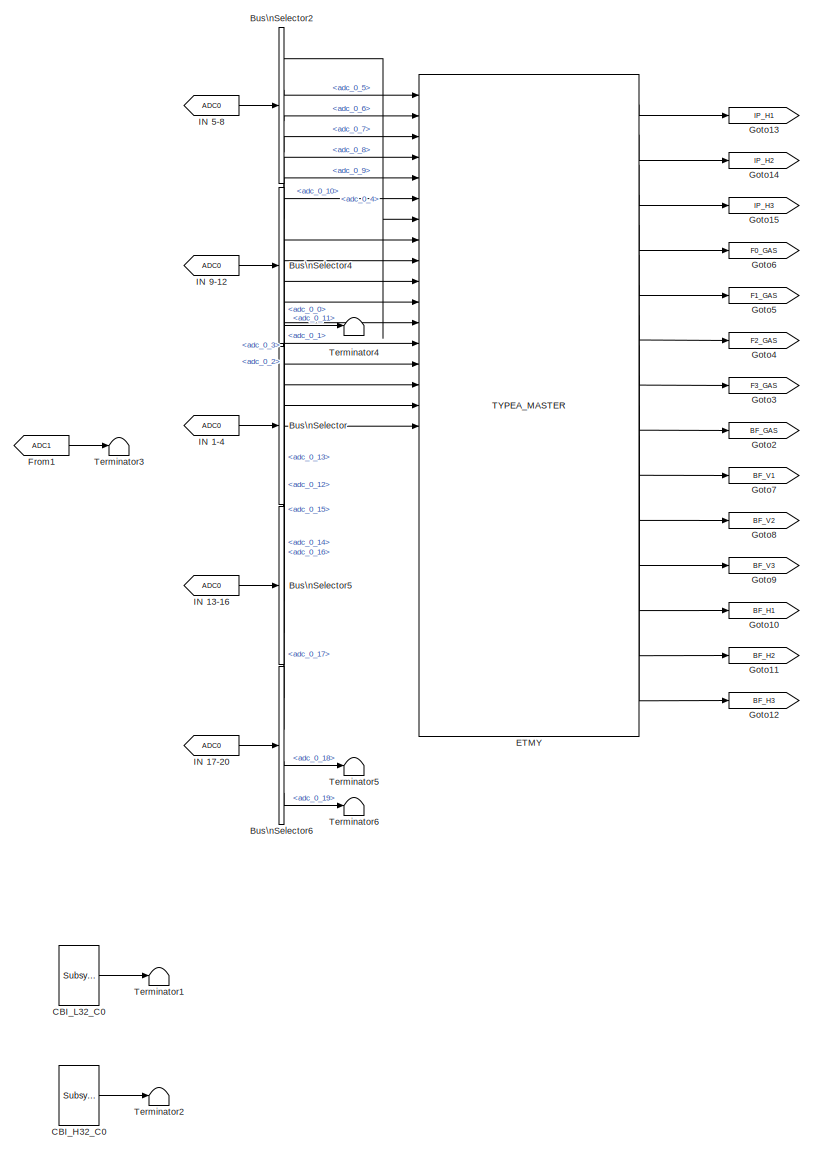
[diagram: root canvas - part 1/3, center side, full height]
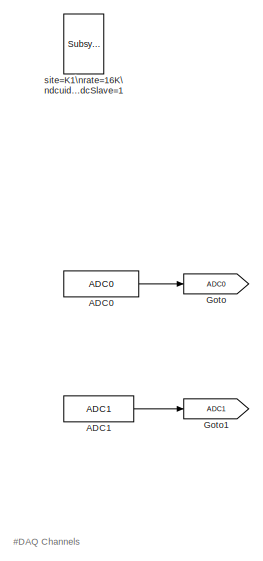
[diagram: root canvas - part 2/3, top left region]
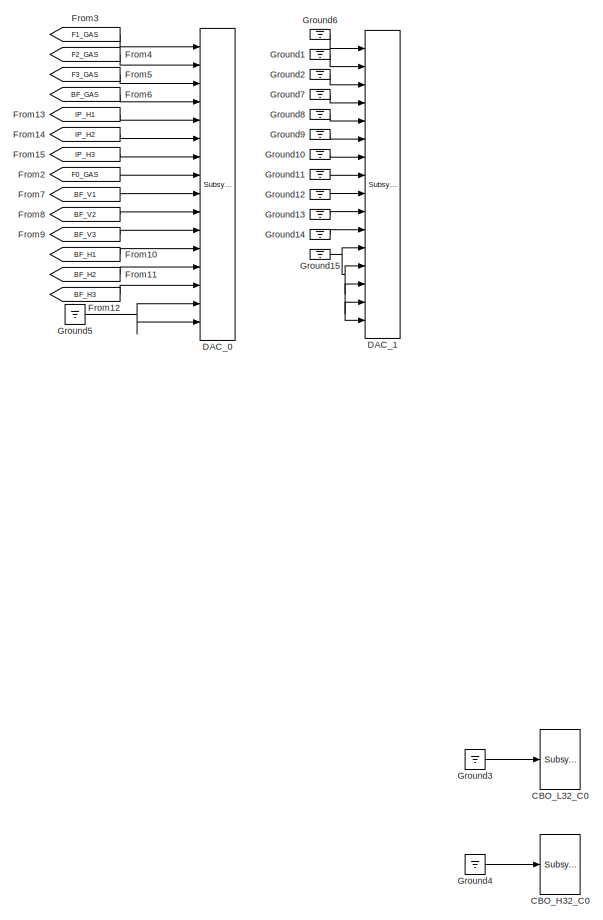
[diagram: root canvas - part 3/3, right side, full height]
MODEL k1visey
KIND model
BLOCK [Reference] ADC0  REF=cdsAdcx0/ADC0
  AttributesFormatString = %<Description>\\n%<Tag>
  Description = type-GSC_16AI64SSA\ncard_num=0
  Ports = [0, 1]
  SID = 51
  SourceBlock = cdsAdcx0/ADC0
  SourceType = SubSystem
  Tag = cdsAdc
BLOCK [Reference] ADC1  REF=cdsAdcx1/ADC1
  AttributesFormatString = %<Description>\\n%<Tag>
  Description = type-GSC_16AI64SSA\ncard_num=1
  Ports = [0, 1]
  SID = 111
  SourceBlock = cdsAdcx1/ADC1
  SourceType = SubSystem
  Tag = cdsAdc
BLOCK [BusSelector] Bus\nSelector
  OutputSignals = adc_0_0,adc_0_1,adc_0_2,adc_0_3
  Ports = [1, 4]
  SID = 157
BLOCK [BusSelector] Bus\nSelector2
  OutputSignals = adc_0_4,adc_0_5,adc_0_6,adc_0_7
  Ports = [1, 4]
  SID = 183
BLOCK [BusSelector] Bus\nSelector4
  OutputSignals = adc_0_8,adc_0_9,adc_0_10,adc_0_11
  Ports = [1, 4]
  SID = 187
BLOCK [BusSelector] Bus\nSelector5
  OutputSignals = adc_0_12,adc_0_13,adc_0_14,adc_0_15
  Ports = [1, 4]
  SID = 189
BLOCK [BusSelector] Bus\nSelector6
  OutputSignals = adc_0_16,adc_0_17,adc_0_18,adc_0_19
  Ports = [1, 4]
  SID = 191
BLOCK [Reference] CBI_H32_C0  REF=cdsCDI64/Subsystem
  AttributesFormatString = %<Tag>\\n%<Description>
  Description = card_num=1
  Ports = [0, 1]
  SID = 130
  SourceBlock = cdsCDI64/Subsystem
  SourceType = SubSystem
  Tag = cdsCDI64
BLOCK [Reference] CBI_L32_C0  REF=cdsCDI64/Subsystem
  AttributesFormatString = %<Tag>\\n%<Description>
  Description = card_num=0
  Ports = [0, 1]
  SID = 131
  SourceBlock = cdsCDI64/Subsystem
  SourceType = SubSystem
  Tag = cdsCDI64
BLOCK [Reference] CBO_H32_C0  REF=cdsCDO64/Subsystem
  AttributesFormatString = %<Tag>\\n%<Description>
  Description = card_num=1
  Ports = [1]
  SID = 132
  SourceBlock = cdsCDO64/Subsystem
  SourceType = SubSystem
  Tag = cdsCDO64
BLOCK [Reference] CBO_L32_C0  REF=cdsCDO64/Subsystem
  AttributesFormatString = %<Tag>\\n%<Description>
  Description = card_num=0
  Ports = [1]
  SID = 133
  SourceBlock = cdsCDO64/Subsystem
  SourceType = SubSystem
  Tag = cdsCDO64
BLOCK [Reference] DAC_0  REF=dac/Subsystem  (lib defined in slx_40ef132df75b, slx_b7657ccccc5b, +4 more)
  AttributesFormatString = %<Description>
  Description = type=GSC_16AO16,\ncard_num=0
  Ports = [16]
  SID = 5
  SourceBlock = dac/Subsystem
  SourceType = SubSystem
BLOCK [Reference] DAC_1  REF=dac/Subsystem  (lib defined in slx_40ef132df75b, slx_b7657ccccc5b, +4 more)
  AttributesFormatString = %<Description>
  Description = type=GSC_16AO16,\ncard_num=1
  Ports = [16]
  SID = 112
  SourceBlock = dac/Subsystem
  SourceType = SubSystem
BLOCK [Reference] ETMY  REF=TYPEA_MASTER/TYPEA_MASTER
  Ports = [31, 21]
  SID = 114
  SourceBlock = TYPEA_MASTER/TYPEA_MASTER
  SourceType = SubSystem
BLOCK [From] From1
  GotoTag = ADC1
  SID = 128
BLOCK [From] From10
  GotoTag = BF_H1
  SID = 215
BLOCK [From] From11
  GotoTag = BF_H2
  SID = 216
BLOCK [From] From12
  GotoTag = BF_H3
  SID = 217
BLOCK [From] From13
  GotoTag = IP_H1
  SID = 221
BLOCK [From] From14
  GotoTag = IP_H2
  SID = 222
BLOCK [From] From15
  GotoTag = IP_H3
  SID = 223
BLOCK [From] From2
  GotoTag = F0_GAS
  SID = 152
BLOCK [From] From3
  GotoTag = F1_GAS
  SID = 153
BLOCK [From] From4
  GotoTag = F2_GAS
  SID = 154
BLOCK [From] From5
  GotoTag = F3_GAS
  SID = 155
BLOCK [From] From6
  GotoTag = BF_GAS
  SID = 156
BLOCK [From] From7
  GotoTag = BF_V1
  SID = 212
BLOCK [From] From8
  GotoTag = BF_V2
  SID = 213
BLOCK [From] From9
  GotoTag = BF_V3
  SID = 214
BLOCK [Goto] Goto
  GotoTag = ADC0
  SID = 125
BLOCK [Goto] Goto1
  GotoTag = ADC1
  SID = 127
BLOCK [Goto] Goto10
  GotoTag = BF_H1
  SID = 209
BLOCK [Goto] Goto11
  GotoTag = BF_H2
  SID = 210
BLOCK [Goto] Goto12
  GotoTag = BF_H3
  SID = 211
BLOCK [Goto] Goto13
  GotoTag = IP_H1
  SID = 218
BLOCK [Goto] Goto14
  GotoTag = IP_H2
  SID = 219
BLOCK [Goto] Goto15
  GotoTag = IP_H3
  SID = 220
BLOCK [Goto] Goto2
  GotoTag = BF_GAS
  SID = 177
BLOCK [Goto] Goto3
  GotoTag = F3_GAS
  SID = 148
BLOCK [Goto] Goto4
  GotoTag = F2_GAS
  SID = 149
BLOCK [Goto] Goto5
  GotoTag = F1_GAS
  SID = 150
BLOCK [Goto] Goto6
  GotoTag = F0_GAS
  SID = 151
BLOCK [Goto] Goto7
  GotoTag = BF_V1
  SID = 206
BLOCK [Goto] Goto8
  GotoTag = BF_V2
  SID = 207
BLOCK [Goto] Goto9
  GotoTag = BF_V3
  SID = 208
BLOCK [Ground] Ground1
  SID = 194
BLOCK [Ground] Ground10
  SID = 199
BLOCK [Ground] Ground11
  SID = 200
BLOCK [Ground] Ground12
  SID = 201
BLOCK [Ground] Ground13
  SID = 202
BLOCK [Ground] Ground14
  SID = 203
BLOCK [Ground] Ground15
  SID = 204
BLOCK [Ground] Ground2
  SID = 195
BLOCK [Ground] Ground3
  SID = 169
BLOCK [Ground] Ground4
  SID = 170
BLOCK [Ground] Ground5
  SID = 178
BLOCK [Ground] Ground6
  SID = 179
BLOCK [Ground] Ground7
  SID = 196
BLOCK [Ground] Ground8
  SID = 197
BLOCK [Ground] Ground9
  SID = 198
BLOCK [From] IN 1-4
  GotoTag = ADC0
  SID = 126
BLOCK [From] IN 13-16
  GotoTag = ADC0
  SID = 184
BLOCK [From] IN 17-20
  GotoTag = ADC0
  SID = 190
BLOCK [From] IN 5-8
  GotoTag = ADC0
  SID = 182
BLOCK [From] IN 9-12
  GotoTag = ADC0
  SID = 186
BLOCK [Terminator] Terminator1
  SID = 167
BLOCK [Terminator] Terminator2
  SID = 168
BLOCK [Terminator] Terminator3
  SID = 171
BLOCK [Terminator] Terminator4
  SID = 188
BLOCK [Terminator] Terminator5
  SID = 192
BLOCK [Terminator] Terminator6
  SID = 193
BLOCK [Reference] site=K1\nrate=16K\ndcuid=666\nhost=k1ey1\nspecific_cpu=3\nadcSlave=1  REF=cdsParameters/Subsystem
  AttributesFormatString = %<Tag>
  Description = Purpose:                                                                                                                                                                                                                                \nProvide system parameters to the FE code generator to properly configure the generated EPICS names, rep rate of the FE controller, and the Data Acquisition node ID fo...<+2934ch>
  Ports = [1, 1]
  SID = 1
  SourceBlock = cdsParameters/Subsystem
  SourceType = SubSystem
  Tag = cdsParameters
ANNOTATION (root): #DAQ Channels\n
LINE ADC0:1 -> Goto:1
LINE ADC1:1 -> Goto1:1
LINE Bus\nSelector2:1 -> ETMY:7
LINE Bus\nSelector2:2 -> ETMY:1
LINE Bus\nSelector2:3 -> ETMY:2
LINE Bus\nSelector2:4 -> ETMY:3
LINE Bus\nSelector4:1 -> ETMY:4
LINE Bus\nSelector4:2 -> ETMY:5
LINE Bus\nSelector4:3 -> ETMY:6
LINE Bus\nSelector4:4 -> Terminator4:1
LINE Bus\nSelector5:1 -> ETMY:12
LINE Bus\nSelector5:2 -> ETMY:13
LINE Bus\nSelector5:3 -> ETMY:14
LINE Bus\nSelector5:4 -> ETMY:15
LINE Bus\nSelector6:1 -> ETMY:16
LINE Bus\nSelector6:2 -> ETMY:17
LINE Bus\nSelector6:3 -> Terminator5:1
LINE Bus\nSelector6:4 -> Terminator6:1
LINE Bus\nSelector:1 -> ETMY:8
LINE Bus\nSelector:2 -> ETMY:9
LINE Bus\nSelector:3 -> ETMY:10
LINE Bus\nSelector:4 -> ETMY:11
LINE CBI_H32_C0:1 -> Terminator2:1
LINE CBI_L32_C0:1 -> Terminator1:1
LINE ETMY:1 -> Goto13:1
LINE ETMY:10 -> Goto8:1
LINE ETMY:11 -> Goto9:1
LINE ETMY:12 -> Goto10:1
LINE ETMY:13 -> Goto11:1
LINE ETMY:14 -> Goto12:1
LINE ETMY:2 -> Goto14:1
LINE ETMY:3 -> Goto15:1
LINE ETMY:4 -> Goto6:1
LINE ETMY:5 -> Goto5:1
LINE ETMY:6 -> Goto4:1
LINE ETMY:7 -> Goto3:1
LINE ETMY:8 -> Goto2:1
LINE ETMY:9 -> Goto7:1
LINE From10:1 -> DAC_0:12
LINE From11:1 -> DAC_0:13
LINE From12:1 -> DAC_0:14
LINE From13:1 -> DAC_0:5
LINE From14:1 -> DAC_0:6
LINE From15:1 -> DAC_0:7
LINE From1:1 -> Terminator3:1
LINE From2:1 -> DAC_0:8
LINE From3:1 -> DAC_0:1
LINE From4:1 -> DAC_0:2
LINE From5:1 -> DAC_0:3
LINE From6:1 -> DAC_0:4
LINE From7:1 -> DAC_0:9
LINE From8:1 -> DAC_0:10
LINE From9:1 -> DAC_0:11
LINE Ground10:1 -> DAC_1:7
LINE Ground11:1 -> DAC_1:8
LINE Ground12:1 -> DAC_1:9
LINE Ground13:1 -> DAC_1:10
LINE Ground14:1 -> DAC_1:11
NET Ground15:1 -> DAC_1:12, DAC_1:13, DAC_1:14, DAC_1:15, DAC_1:16
LINE Ground1:1 -> DAC_1:2
LINE Ground2:1 -> DAC_1:3
LINE Ground3:1 -> CBO_L32_C0:1
LINE Ground4:1 -> CBO_H32_C0:1
NET Ground5:1 -> DAC_0:15, DAC_0:16
LINE Ground6:1 -> DAC_1:1
LINE Ground7:1 -> DAC_1:4
LINE Ground8:1 -> DAC_1:5
LINE Ground9:1 -> DAC_1:6
LINE IN 1-4:1 -> Bus\nSelector:1
LINE IN 13-16:1 -> Bus\nSelector5:1
LINE IN 17-20:1 -> Bus\nSelector6:1
LINE IN 5-8:1 -> Bus\nSelector2:1
LINE IN 9-12:1 -> Bus\nSelector4:1
note: NET lines group one-source signal fan-out (src -> all destinations, sorted); 1:1 wires keep LINE
